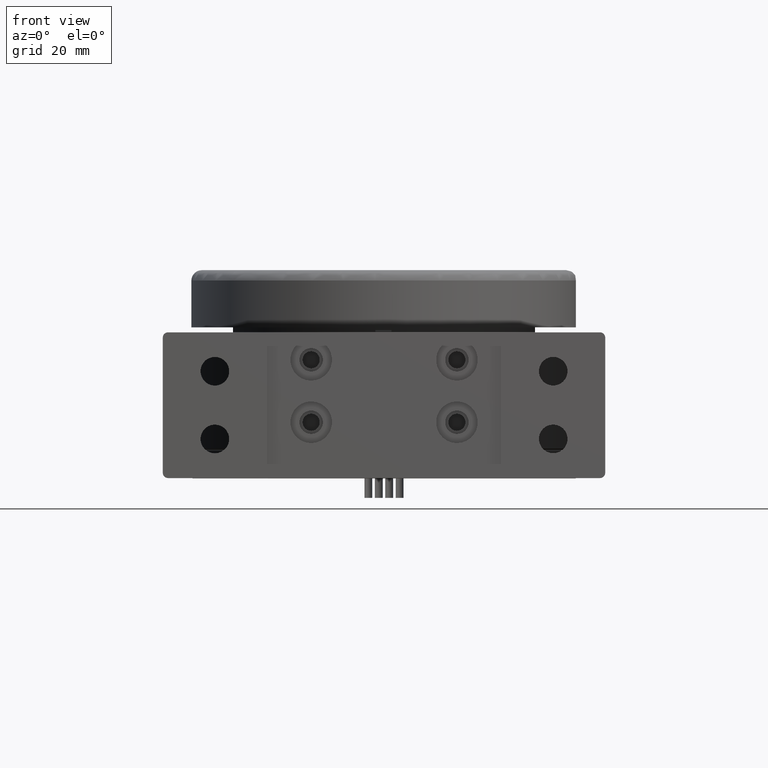
[diagram: clean part render]
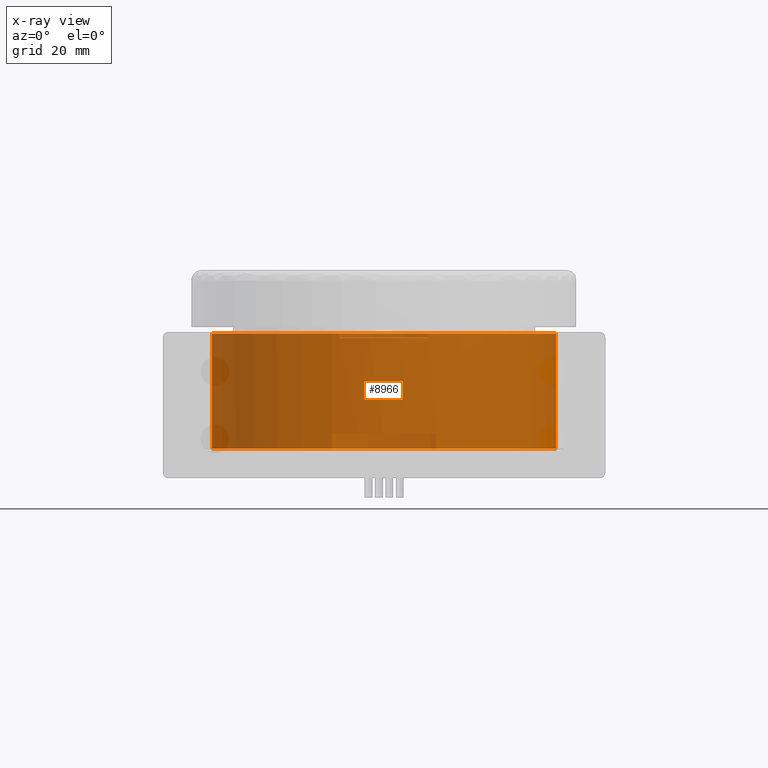
[diagram: x-ray — body ghosted, one internal face saturated and labeled with its STEP entity id]
A machine part, front view, then the same camera in x-ray: the body is ghosted and one INTERNAL B-rep face — a face not visible from any outside direction — is saturated and labeled: STEP entity #8966.
In plain terms, the highlighted cylindrical surface (bore or boss wall) has radius 33.05 mm, axis along (-0, -0, -1).
Its self-contained STEP definition (entity closure, byte-faithful):
#92 = EDGE_CURVE ( 'NONE', #11547, #5143, #4231, .T. ) ;
#387 = CARTESIAN_POINT ( 'NONE',  ( 8.553969440638324429, 24.07615144114632244, 27.00000000000000000 ) ) ;
#596 = CARTESIAN_POINT ( 'NONE',  ( 9.999999999999998224, 24.49916667768933110, 5.699999999999993960 ) ) ;
#903 = DIRECTION ( 'NONE',  ( 0.000000000000000000, 0.000000000000000000, 1.000000000000000000 ) ) ;
#1136 = FACE_OUTER_BOUND ( 'NONE', #7855, .T. ) ;
#1676 = ORIENTED_EDGE ( 'NONE', *, *, #3006, .F. ) ;
#2105 = CARTESIAN_POINT ( 'NONE',  ( 0.000000000000000000, 56.00000000000000000, 28.00000000000000000 ) ) ;
#2231 = DIRECTION ( 'NONE',  ( 0.000000000000000000, 0.000000000000000000, 1.000000000000000000 ) ) ;
#2385 = FACE_OUTER_BOUND ( 'NONE', #10856, .T. ) ;
#2542 = CIRCLE ( 'NONE', #12116, 33.04999999999997584 ) ;
#3006 = EDGE_CURVE ( 'NONE', #11970, #5143, #4731, .T. ) ;
#3052 = EDGE_CURVE ( 'NONE', #11547, #7905, #13035, .T. ) ;
#3142 = ORIENTED_EDGE ( 'NONE', *, *, #3789, .T. ) ;
#3165 = VECTOR ( 'NONE', #3711, 1000.000000000000000 ) ;
#3471 = CARTESIAN_POINT ( 'NONE',  ( 10.00000000000000000, 24.49916667768933110, 8.500000000000000000 ) ) ;
#3711 = DIRECTION ( 'NONE',  ( 0.000000000000000000, 0.000000000000000000, 1.000000000000000000 ) ) ;
#3789 = EDGE_CURVE ( 'NONE', #9511, #9872, #10437, .T. ) ;
#3965 = CARTESIAN_POINT ( 'NONE',  ( 8.553969440638322652, 24.07615144114632599, 27.80000000000003268 ) ) ;
#4231 = CIRCLE ( 'NONE', #11190, 33.04999999999996874 ) ;
#4503 = CYLINDRICAL_SURFACE ( 'NONE', #12625, 33.04999999999997584 ) ;
#4542 = AXIS2_PLACEMENT_3D ( 'NONE', #5792, #4765, #9932 ) ;
#4731 = LINE ( 'NONE', #9897, #3165 ) ;
#4765 = DIRECTION ( 'NONE',  ( 0.000000000000000000, 0.000000000000000000, -1.000000000000000000 ) ) ;
#4954 = CARTESIAN_POINT ( 'NONE',  ( -8.553969440638319099, 24.07615144114632244, 27.80000000000005400 ) ) ;
#5085 = EDGE_CURVE ( 'NONE', #6547, #9511, #10403, .T. ) ;
#5143 = VERTEX_POINT ( 'NONE', #4954 ) ;
#5161 = AXIS2_PLACEMENT_3D ( 'NONE', #7043, #6029, #12277 ) ;
#5165 = CARTESIAN_POINT ( 'NONE',  ( -10.00000000000000000, 24.49916667768933110, 5.699999999999994849 ) ) ;
#5469 = ORIENTED_EDGE ( 'NONE', *, *, #12708, .F. ) ;
#5557 = CARTESIAN_POINT ( 'NONE',  ( -10.00000000000000355, 24.49916667768933110, 28.00000000000000000 ) ) ;
#5613 = CIRCLE ( 'NONE', #5161, 33.04999999999997584 ) ;
#5792 = CARTESIAN_POINT ( 'NONE',  ( 0.000000000000000000, 56.00000000000000000, 5.699999999999996625 ) ) ;
#5944 = ORIENTED_EDGE ( 'NONE', *, *, #11328, .F. ) ;
#6029 = DIRECTION ( 'NONE',  ( -0.000000000000000000, -0.000000000000000000, -1.000000000000000000 ) ) ;
#6251 = VECTOR ( 'NONE', #7378, 1000.000000000000000 ) ;
#6442 = DIRECTION ( 'NONE',  ( 0.000000000000000000, 0.000000000000000000, 1.000000000000000000 ) ) ;
#6547 = VERTEX_POINT ( 'NONE', #5165 ) ;
#6772 = ORIENTED_EDGE ( 'NONE', *, *, #92, .T. ) ;
#7043 = CARTESIAN_POINT ( 'NONE',  ( 0.000000000000000000, 56.00000000000000000, 27.00000000000000000 ) ) ;
#7084 = VECTOR ( 'NONE', #6442, 1000.000000000000000 ) ;
#7378 = DIRECTION ( 'NONE',  ( 0.000000000000000000, -0.000000000000000000, 1.000000000000000000 ) ) ;
#7498 = DIRECTION ( 'NONE',  ( -1.000000000000000000, 0.000000000000000000, 0.000000000000000000 ) ) ;
#7855 = EDGE_LOOP ( 'NONE', ( #6772, #1676, #5469, #11501 ) ) ;
#7905 = VERTEX_POINT ( 'NONE', #387 ) ;
#8374 = DIRECTION ( 'NONE',  ( -0.000000000000000000, -0.000000000000000000, -1.000000000000000000 ) ) ;
#8434 = CARTESIAN_POINT ( 'NONE',  ( 0.000000000000000000, 56.00000000000000000, 27.80000000000002913 ) ) ;
#8876 = CARTESIAN_POINT ( 'NONE',  ( -8.553969440638319099, 24.07615144114631889, 27.00000000000000000 ) ) ;
#8886 = ORIENTED_EDGE ( 'NONE', *, *, #5085, .T. ) ;
#8966 = ADVANCED_FACE ( 'NONE', ( #2385, #1136 ), #4503, .F. ) ;
#9368 = CARTESIAN_POINT ( 'NONE',  ( 0.000000000000000000, 56.00000000000000000, 8.500000000000000000 ) ) ;
#9511 = VERTEX_POINT ( 'NONE', #596 ) ;
#9772 = LINE ( 'NONE', #5557, #7084 ) ;
#9872 = VERTEX_POINT ( 'NONE', #3471 ) ;
#9897 = CARTESIAN_POINT ( 'NONE',  ( -8.553969440638317323, 24.07615144114631889, 28.00000000000000000 ) ) ;
#9932 = DIRECTION ( 'NONE',  ( -1.000000000000000000, 0.000000000000000000, -2.624392550645700997E-17 ) ) ;
#10403 = CIRCLE ( 'NONE', #4542, 33.04999999999997584 ) ;
#10437 = LINE ( 'NONE', #11263, #6251 ) ;
#10856 = EDGE_LOOP ( 'NONE', ( #5944, #8886, #3142, #12131 ) ) ;
#10929 = CARTESIAN_POINT ( 'NONE',  ( 8.553969440638329758, 24.07615144114632599, 28.00000000000000000 ) ) ;
#11118 = VERTEX_POINT ( 'NONE', #11412 ) ;
#11190 = AXIS2_PLACEMENT_3D ( 'NONE', #8434, #2231, #12596 ) ;
#11263 = CARTESIAN_POINT ( 'NONE',  ( 10.00000000000000000, 24.49916667768933110, 8.500000000000000000 ) ) ;
#11328 = EDGE_CURVE ( 'NONE', #6547, #11118, #9772, .T. ) ;
#11412 = CARTESIAN_POINT ( 'NONE',  ( -10.00000000000000178, 24.49916667768933110, 8.500000000000000000 ) ) ;
#11501 = ORIENTED_EDGE ( 'NONE', *, *, #3052, .F. ) ;
#11547 = VERTEX_POINT ( 'NONE', #3965 ) ;
#11872 = VECTOR ( 'NONE', #12075, 1000.000000000000000 ) ;
#11970 = VERTEX_POINT ( 'NONE', #8876 ) ;
#12075 = DIRECTION ( 'NONE',  ( -0.000000000000000000, -0.000000000000000000, -1.000000000000000000 ) ) ;
#12116 = AXIS2_PLACEMENT_3D ( 'NONE', #9368, #903, #13457 ) ;
#12131 = ORIENTED_EDGE ( 'NONE', *, *, #12396, .F. ) ;
#12277 = DIRECTION ( 'NONE',  ( -1.000000000000000000, 0.000000000000000000, 0.000000000000000000 ) ) ;
#12396 = EDGE_CURVE ( 'NONE', #11118, #9872, #2542, .T. ) ;
#12596 = DIRECTION ( 'NONE',  ( 1.000000000000000000, 0.000000000000000000, -1.049757020258280645E-16 ) ) ;
#12625 = AXIS2_PLACEMENT_3D ( 'NONE', #2105, #8374, #7498 ) ;
#12708 = EDGE_CURVE ( 'NONE', #7905, #11970, #5613, .T. ) ;
#13035 = LINE ( 'NONE', #10929, #11872 ) ;
#13457 = DIRECTION ( 'NONE',  ( -1.000000000000000000, 0.000000000000000000, 0.000000000000000000 ) ) ;